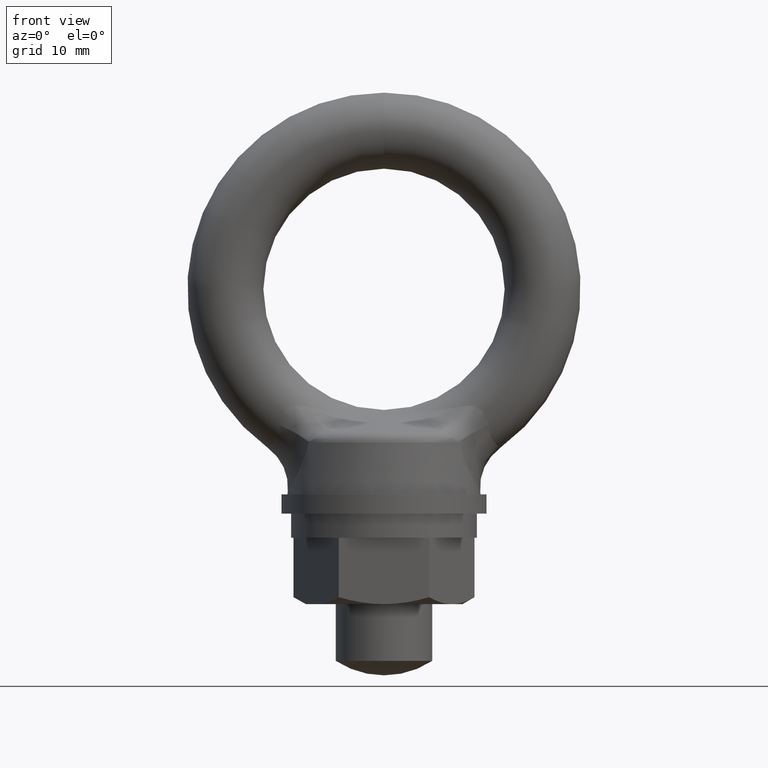
[diagram: clean part render]
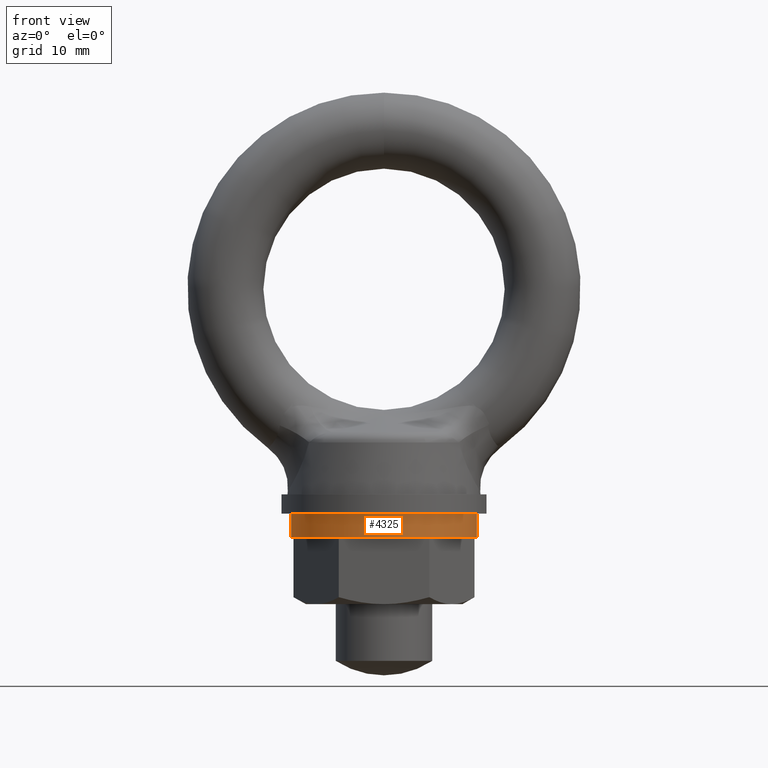
[diagram: same view with one face highlighted and labeled with its STEP entity id]
A machine part, front view. The second image highlights one B-rep face of the part: STEP entity #4325.
In plain terms, the highlighted cylindrical surface (partial cylindrical patch) has radius 7.7 mm, axis along (0, 0, -1).
Its self-contained STEP definition (entity closure, byte-faithful):
#961 = DIRECTION ( 'NONE',  ( 1.000000000000000000, 0.0000000000000000000, 0.0000000000000000000 ) ) ;
#962 = DIRECTION ( 'NONE',  ( 0.0000000000000000000, 0.0000000000000000000, -1.000000000000000000 ) ) ;
#963 = CARTESIAN_POINT ( 'NONE',  ( 0.0000000000000000000, 0.0000000000000000000, -20.59999900000000000 ) ) ;
#964 = AXIS2_PLACEMENT_3D ( 'NONE', #963, #962, #961 ) ;
#965 = CIRCLE ( 'NONE', #964, 7.700000000000000200 ) ;
#966 = DIRECTION ( 'NONE',  ( 1.000000000000000000, 0.0000000000000000000, 0.0000000000000000000 ) ) ;
#967 = DIRECTION ( 'NONE',  ( 0.0000000000000000000, 0.0000000000000000000, -1.000000000000000000 ) ) ;
#968 = AXIS2_PLACEMENT_3D ( 'NONE', #974, #967, #966 ) ;
#969 = CIRCLE ( 'NONE', #968, 7.700000000000000200 ) ;
#970 = DIRECTION ( 'NONE',  ( -1.000000000000000000, 0.0000000000000000000, 0.0000000000000000000 ) ) ;
#971 = DIRECTION ( 'NONE',  ( 0.0000000000000000000, 0.0000000000000000000, -1.000000000000000000 ) ) ;
#972 = CARTESIAN_POINT ( 'NONE',  ( 0.0000000000000000000, 0.0000000000000000000, 979.4000009999999700 ) ) ;
#973 = AXIS2_PLACEMENT_3D ( 'NONE', #972, #971, #970 ) ;
#974 = CARTESIAN_POINT ( 'NONE',  ( 0.0000000000000000000, 0.0000000000000000000, -18.59999900000000000 ) ) ;
#975 = CYLINDRICAL_SURFACE ( 'NONE', #973, 7.700000000000000200 ) ;
#976 = FACE_OUTER_BOUND ( 'NONE', #4278, .T. ) ;
#4218 = EDGE_CURVE ( 'NONE', #4295, #4219, #4896, .T. ) ;
#4219 = VERTEX_POINT ( 'NONE', #4907 ) ;
#4222 = VERTEX_POINT ( 'NONE', #4901 ) ;
#4224 = EDGE_CURVE ( 'NONE', #4294, #4222, #5324, .T. ) ;
#4278 = EDGE_LOOP ( 'NONE', ( #4326, #4327, #4329, #4330 ) ) ;
#4294 = VERTEX_POINT ( 'NONE', #5479 ) ;
#4295 = VERTEX_POINT ( 'NONE', #5478 ) ;
#4325 = ADVANCED_FACE ( 'NONE', ( #976 ), #975, .T. ) ;
#4326 = ORIENTED_EDGE ( 'NONE', *, *, #4218, .F. ) ;
#4327 = ORIENTED_EDGE ( 'NONE', *, *, #4328, .T. ) ;
#4328 = EDGE_CURVE ( 'NONE', #4295, #4294, #969, .T. ) ;
#4329 = ORIENTED_EDGE ( 'NONE', *, *, #4224, .T. ) ;
#4330 = ORIENTED_EDGE ( 'NONE', *, *, #4331, .F. ) ;
#4331 = EDGE_CURVE ( 'NONE', #4219, #4222, #965, .T. ) ;
#4895 = CARTESIAN_POINT ( 'NONE',  ( 7.700000000000000200, 9.429468924432306500E-016, 979.4000009999999700 ) ) ;
#4896 = LINE ( 'NONE', #4895, #4909 ) ;
#4901 = CARTESIAN_POINT ( 'NONE',  ( -7.700000000000000200, 0.0000000000000000000, -20.59999900000000000 ) ) ;
#4907 = CARTESIAN_POINT ( 'NONE',  ( 7.700000000000000200, 9.429468924432306500E-016, -20.59999900000000000 ) ) ;
#4908 = DIRECTION ( 'NONE',  ( 0.0000000000000000000, 0.0000000000000000000, -1.000000000000000000 ) ) ;
#4909 = VECTOR ( 'NONE', #4908, 1000.000000000000000 ) ;
#5319 = CARTESIAN_POINT ( 'NONE',  ( -7.700000000000000200, 0.0000000000000000000, 979.4000009999999700 ) ) ;
#5321 = DIRECTION ( 'NONE',  ( 0.0000000000000000000, 0.0000000000000000000, -1.000000000000000000 ) ) ;
#5322 = VECTOR ( 'NONE', #5321, 1000.000000000000000 ) ;
#5324 = LINE ( 'NONE', #5319, #5322 ) ;
#5478 = CARTESIAN_POINT ( 'NONE',  ( 7.700000000000000200, 9.429468924432306500E-016, -18.59999900000000000 ) ) ;
#5479 = CARTESIAN_POINT ( 'NONE',  ( -7.700000000000000200, 0.0000000000000000000, -18.59999900000000000 ) ) ;